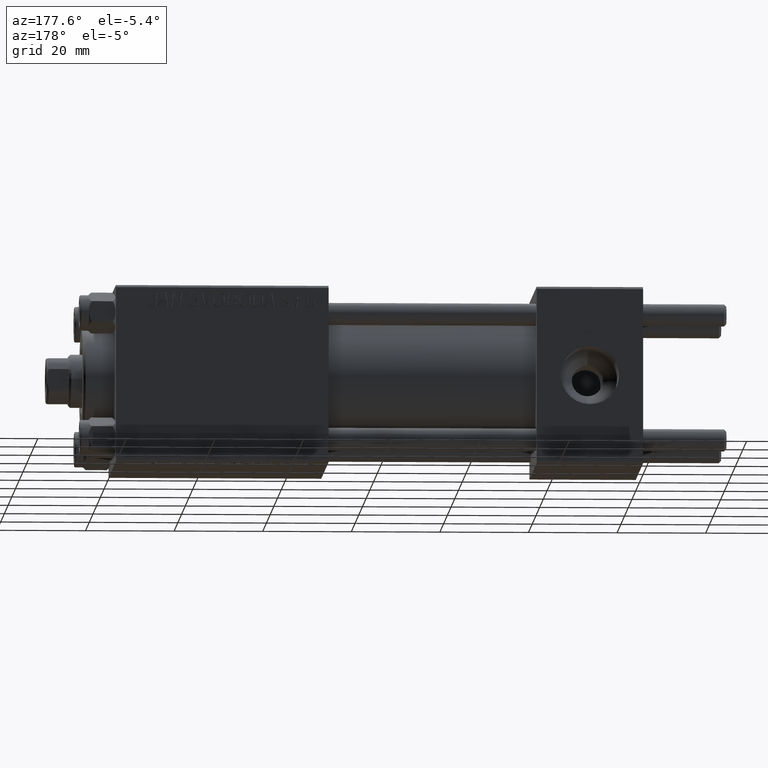
[diagram: clean part render]
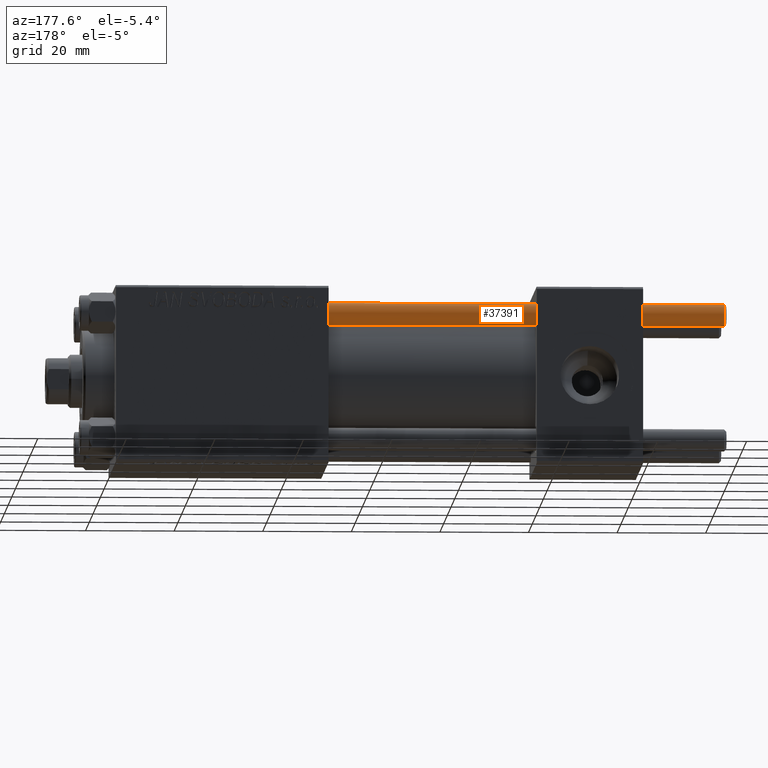
[diagram: same view with one face highlighted and labeled with its STEP entity id]
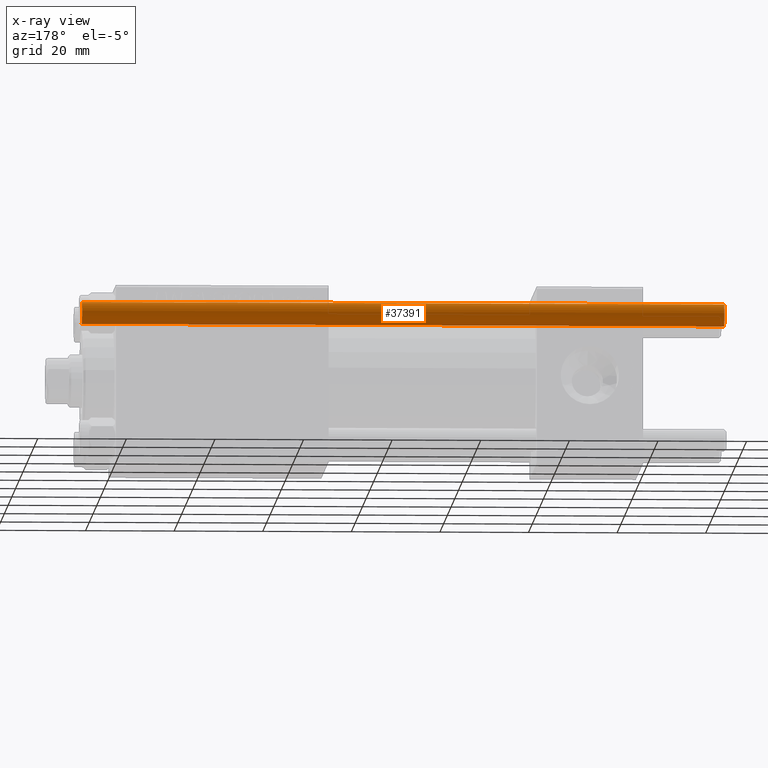
[diagram: x-ray of the same camera — body ghosted, the highlighted face saturated]
A machine part, auxiliary view. The second image highlights one B-rep face of the part: STEP entity #37391.
The next image is the same camera in x-ray: the body ghosted, the highlighted face saturated — about 0% of this face is hidden behind the body in this view.
In plain terms, the highlighted cylindrical surface (edge-blend (fillet) strip) has radius 2.5 mm, axis along (-1, -0, -0).
Its self-contained STEP definition (entity closure, byte-faithful):
#244 = DIRECTION ( 'NONE',  ( -0.000000000000000000, -0.000000000000000000, -1.000000000000000000 ) ) ;
#924 = VERTEX_POINT ( 'NONE', #15930 ) ;
#4747 = AXIS2_PLACEMENT_3D ( 'NONE', #15785, #23585, #44149 ) ;
#7774 = EDGE_LOOP ( 'NONE', ( #21829, #50586, #30102, #50283 ) ) ;
#8628 = AXIS2_PLACEMENT_3D ( 'NONE', #29270, #37870, #41266 ) ;
#12630 = CARTESIAN_POINT ( 'NONE',  ( 0.000000000000000000, 0.000000000000000000, 145.5000000000000284 ) ) ;
#13029 = VECTOR ( 'NONE', #38579, 1000.000000000000000 ) ;
#15785 = CARTESIAN_POINT ( 'NONE',  ( 0.000000000000000000, 0.000000000000000000, 0.5000000000000559552 ) ) ;
#15930 = CARTESIAN_POINT ( 'NONE',  ( 2.500000000000000000, 3.061616997868383141E-16, 145.5000000000000284 ) ) ;
#17615 = CARTESIAN_POINT ( 'NONE',  ( 2.500000000000000000, 3.061616997868383141E-16, 0.5000000000000559552 ) ) ;
#20262 = LINE ( 'NONE', #47092, #20323 ) ;
#20323 = VECTOR ( 'NONE', #244, 1000.000000000000000 ) ;
#21829 = ORIENTED_EDGE ( 'NONE', *, *, #36514, .T. ) ;
#23585 = DIRECTION ( 'NONE',  ( -0.000000000000000000, -0.000000000000000000, 1.000000000000000000 ) ) ;
#23754 = EDGE_CURVE ( 'NONE', #26342, #29791, #27162, .T. ) ;
#25606 = CARTESIAN_POINT ( 'NONE',  ( 2.500000000000000000, 3.061616997868383141E-16, 146.0000000000000000 ) ) ;
#25640 = CYLINDRICAL_SURFACE ( 'NONE', #8628, 2.500000000000000000 ) ;
#26342 = VERTEX_POINT ( 'NONE', #17615 ) ;
#27162 = CIRCLE ( 'NONE', #4747, 2.500000000000000000 ) ;
#29013 = DIRECTION ( 'NONE',  ( 0.000000000000000000, 0.000000000000000000, -1.000000000000000000 ) ) ;
#29270 = CARTESIAN_POINT ( 'NONE',  ( 0.000000000000000000, 0.000000000000000000, 146.0000000000000000 ) ) ;
#29791 = VERTEX_POINT ( 'NONE', #41594 ) ;
#30102 = ORIENTED_EDGE ( 'NONE', *, *, #23754, .T. ) ;
#30641 = VERTEX_POINT ( 'NONE', #46895 ) ;
#33175 = FACE_OUTER_BOUND ( 'NONE', #7774, .T. ) ;
#36514 = EDGE_CURVE ( 'NONE', #30641, #924, #48459, .T. ) ;
#37391 = ADVANCED_FACE ( 'NONE', ( #33175 ), #25640, .T. ) ;
#37870 = DIRECTION ( 'NONE',  ( -0.000000000000000000, -0.000000000000000000, -1.000000000000000000 ) ) ;
#38493 = AXIS2_PLACEMENT_3D ( 'NONE', #12630, #29013, #44901 ) ;
#38579 = DIRECTION ( 'NONE',  ( -0.000000000000000000, -0.000000000000000000, -1.000000000000000000 ) ) ;
#39853 = EDGE_CURVE ( 'NONE', #30641, #29791, #20262, .T. ) ;
#41266 = DIRECTION ( 'NONE',  ( -1.000000000000000000, 0.000000000000000000, 0.000000000000000000 ) ) ;
#41594 = CARTESIAN_POINT ( 'NONE',  ( -2.500000000000000000, 0.000000000000000000, 0.5000000000000559552 ) ) ;
#44149 = DIRECTION ( 'NONE',  ( 1.000000000000000000, 0.000000000000000000, 0.000000000000000000 ) ) ;
#44901 = DIRECTION ( 'NONE',  ( 1.000000000000000000, 0.000000000000000000, 0.000000000000000000 ) ) ;
#45652 = LINE ( 'NONE', #25606, #13029 ) ;
#46895 = CARTESIAN_POINT ( 'NONE',  ( -2.500000000000000000, 0.000000000000000000, 145.5000000000000284 ) ) ;
#47092 = CARTESIAN_POINT ( 'NONE',  ( -2.500000000000000000, 0.000000000000000000, 146.0000000000000000 ) ) ;
#48459 = CIRCLE ( 'NONE', #38493, 2.500000000000000000 ) ;
#48728 = EDGE_CURVE ( 'NONE', #924, #26342, #45652, .T. ) ;
#50283 = ORIENTED_EDGE ( 'NONE', *, *, #39853, .F. ) ;
#50586 = ORIENTED_EDGE ( 'NONE', *, *, #48728, .T. ) ;